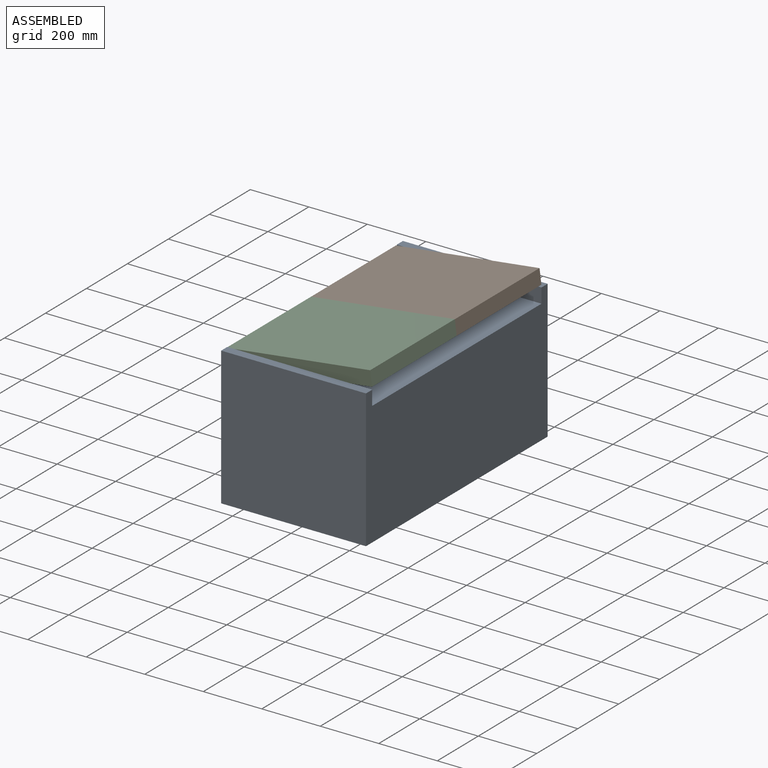
[diagram: assembled view]
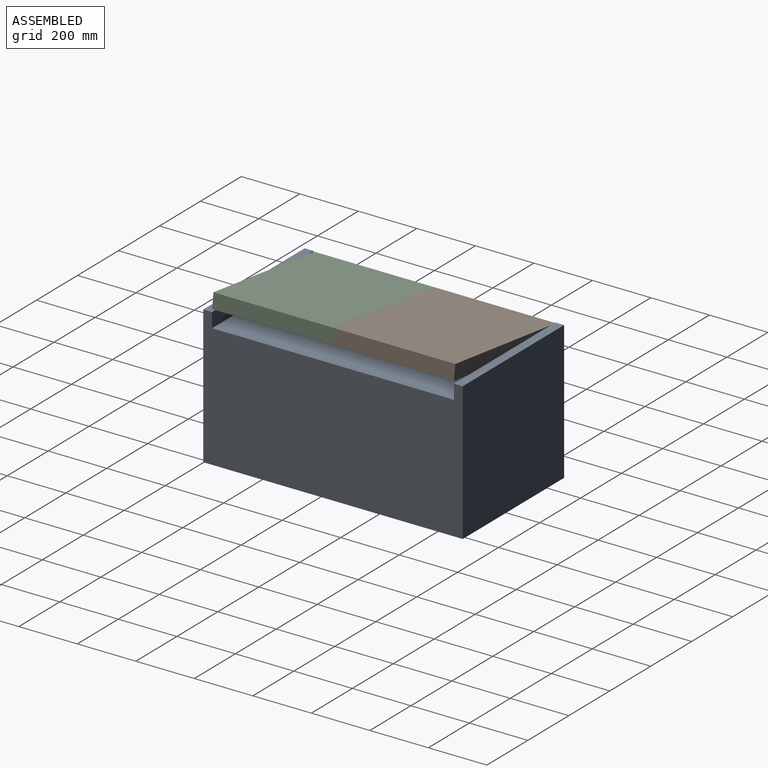
[diagram: assembled view, second angle]
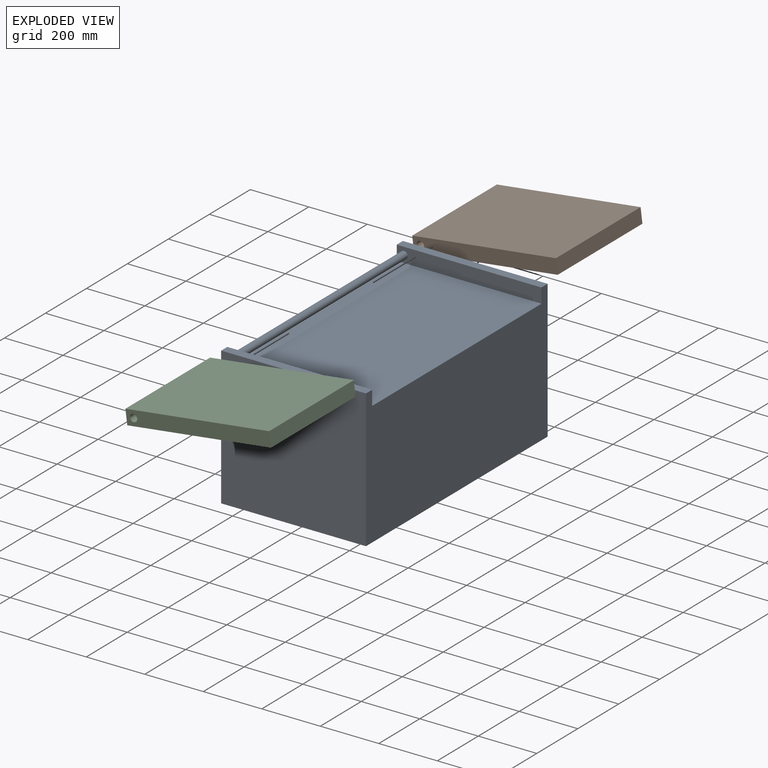
[diagram: exploded view]
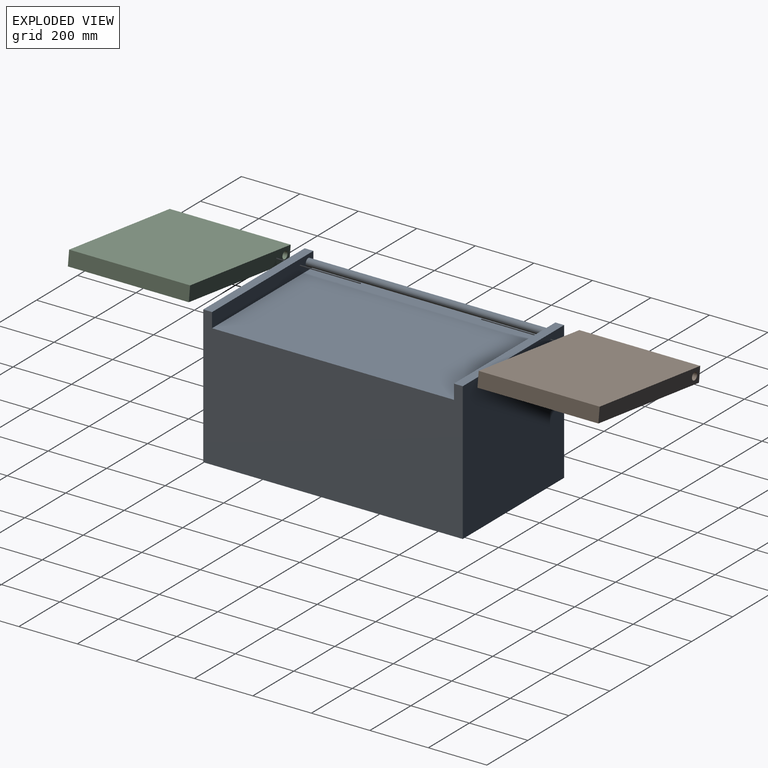
[diagram: exploded view, second angle]
ASSEMBLY  parts=3 mates=4
PART A: 11 faces, bbox 495x887x472 mm
  f0: plane 495x30mm, normal (0,0,1), area 14850mm2, adj f1,f2,f3,f7
  f1: plane 887x472mm, normal (1,0,0), area 377314mm2, adj f0,f2,f4,f5,f6,f7,f8,f9
  f2: plane 495x472mm, normal (0,1,0), area 233640mm2, adj f0,f1,f3,f6
  f3: plane 887x472mm, normal (-1,0,0), area 377314mm2, adj f0,f2,f4,f5,f6,f7,f8,f9
  f4: plane 495x472mm, normal (0,-1,0), area 233640mm2, adj f1,f3,f5,f6
  f5: plane 495x30mm, normal (0,0,1), area 14850mm2, adj f1,f3,f4,f8
  f6: plane 887x495mm, normal (0,0,-1), area 439065mm2, adj f1,f2,f3,f4
  f7: plane 495x50mm, normal (0,-1,0), area 24259.1mm2, adj f0,f1,f3,f9,f10
  f8: plane 495x50mm, normal (0,1,0), area 24259.1mm2, adj f1,f3,f5,f9,f10
  f9: plane 827x495mm, normal (0,0,1), area 409365mm2, adj f1,f3,f7,f8
  f10: cylinder r=12.5mm len=827mm, axis (0,1,0), area 64952.4mm2, adj f7,f8
PART B: 7 faces, bbox 413.5x495x50 mm
  f0: plane 413.5x50mm, normal (0,1,0), area 20675mm2, adj f1,f3,f4,f5
  f1: plane 495x50mm, normal (-1,0,0), area 24259.1mm2, adj f0,f2,f4,f5,f6
  f2: plane 413.5x50mm, normal (0,-1,0), area 20675mm2, adj f1,f3,f4,f5
  f3: plane 495x50mm, normal (1,0,0), area 24259.1mm2, adj f0,f2,f4,f5,f6
  f4: plane 495x413.5mm, normal (0,0,1), area 204682.5mm2, adj f0,f1,f2,f3
  f5: plane 495x413.5mm, normal (0,0,-1), area 204682.5mm2, adj f0,f1,f2,f3
  f6: cylinder r=12.5mm len=413.5mm, axis (1,0,0), area 32476.2mm2, adj f1,f3
PART C: same geometry as B
PLACE A t=(-226.98,-336.03,-288.02)mm fixed
PLACE B rot(axis=(-0.06,-0.06,1),90.2deg) t=(-32.45,240.96,158.23)mm
PLACE C rot(axis=(-0.06,-0.06,1),90.2deg) t=(-32.45,-172.54,158.35)mm
MATE cylindrical A.f10 <-> B.f6  axis (0,1,0) through (-227.86,63.35,158.98)mm
MATE planar C.f1 <-> A.f8  axis (0,-1,0) through (-2.63,-350.15,187.3)mm
MATE planar B.f3 <-> A.f7  axis (0,1,0) through (-2.61,476.85,187.16)mm
MATE cylindrical C.f6 <-> A.f10  axis (0,1,0) through (-227.86,63.35,158.98)mm
